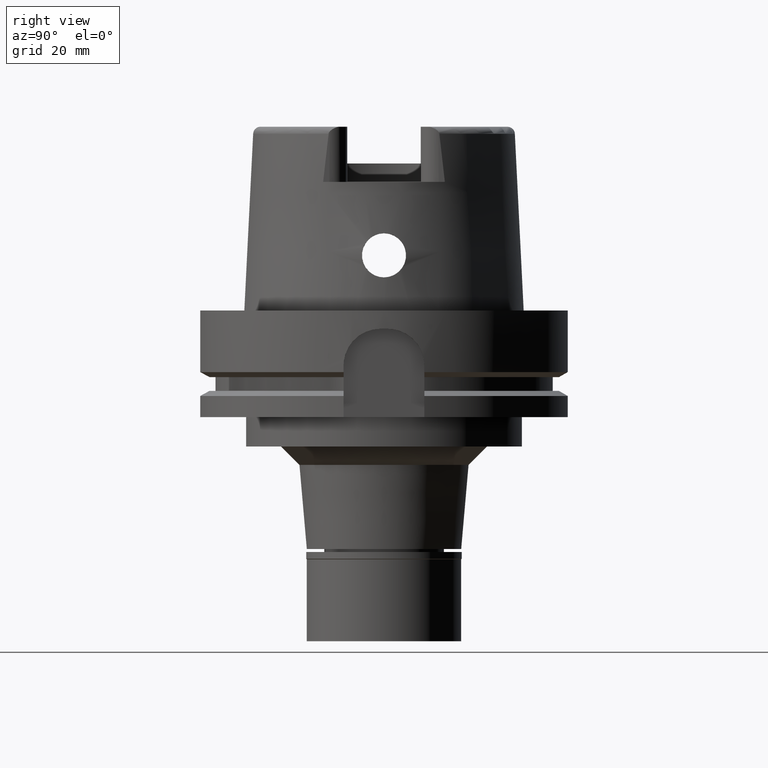
[diagram: clean part render]
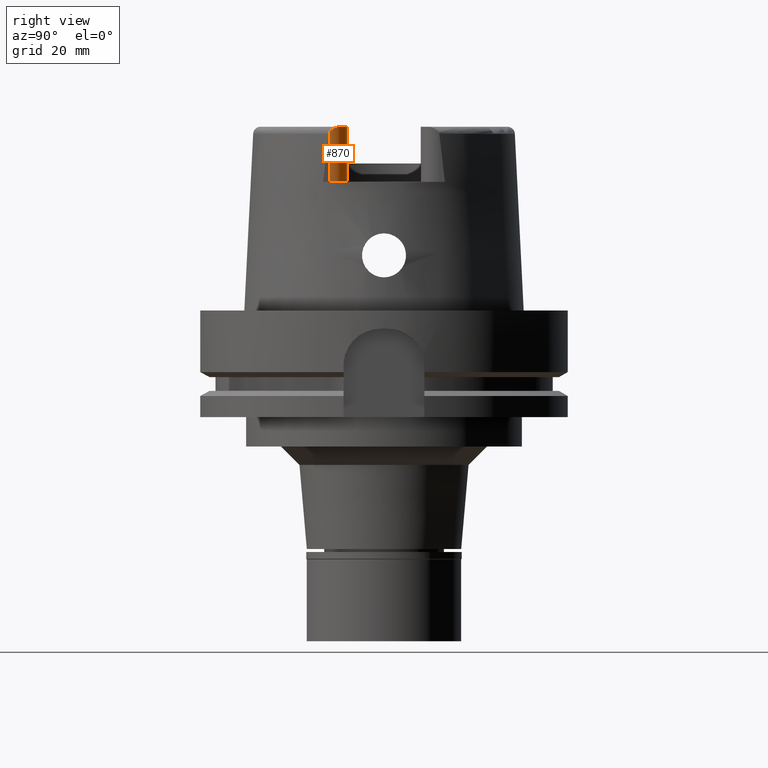
[diagram: same view with one face highlighted and labeled with its STEP entity id]
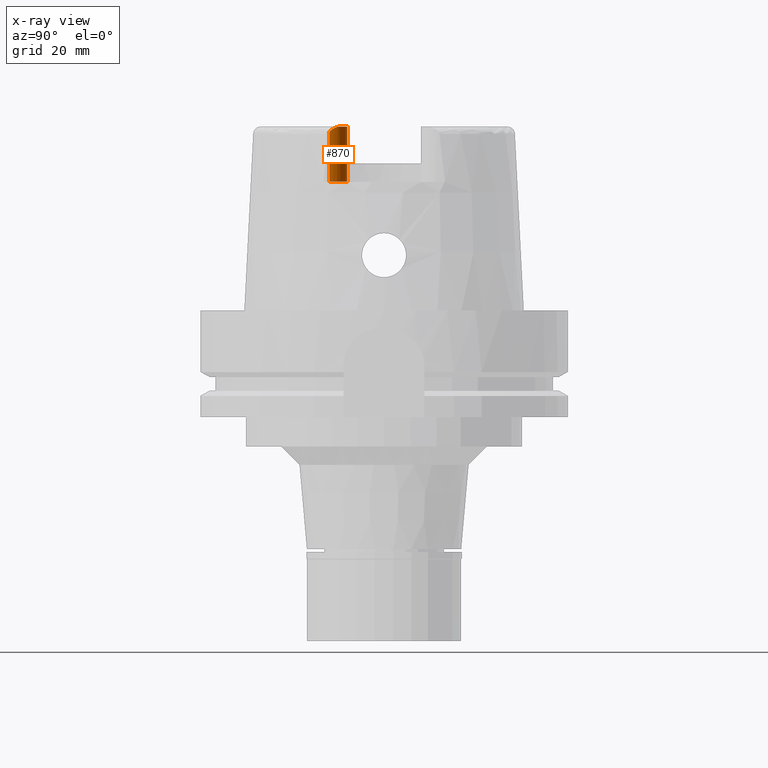
[diagram: x-ray of the same camera — body ghosted, the highlighted face saturated]
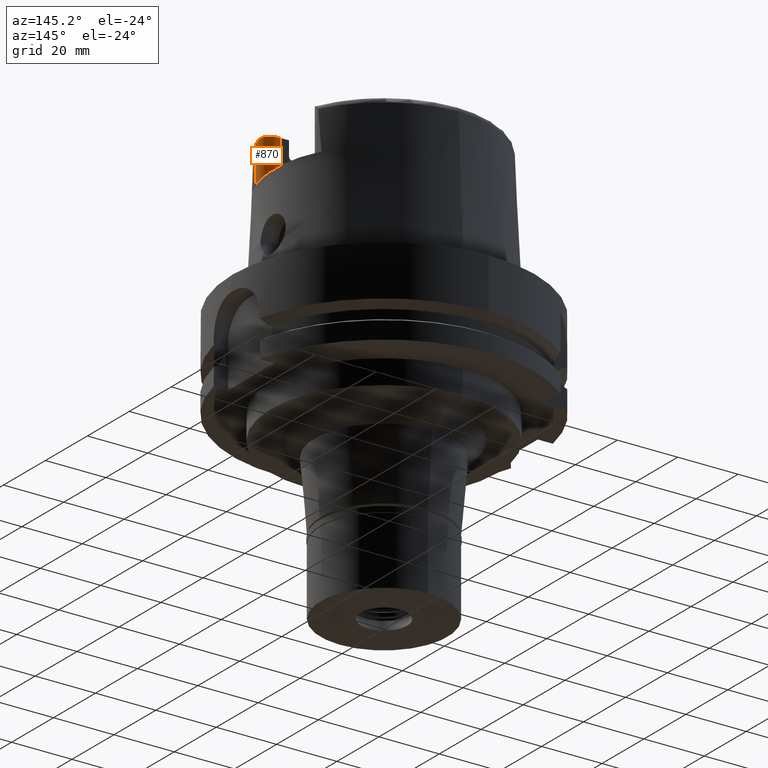
[diagram: same view with one face highlighted and labeled with its STEP entity id]
A machine part, right view. The second image highlights one B-rep face of the part: STEP entity #870.
The next image is the same camera in x-ray: the body ghosted, the highlighted face saturated — about 0% of this face is hidden behind the body in this view.
A second angle (auxiliary view) of the same face is appended — the face is thin or edge-on in the first view.
In plain terms, the highlighted cylindrical surface (edge-blend (fillet) strip) has radius 4.88 mm, axis along (0, 0, 1).
Its self-contained STEP definition (entity closure, byte-faithful):
#108 = CARTESIAN_POINT ( 'NONE',  ( 27.36999999999999744, -10.00999999999999979, 50.00000000000000000 ) ) ;
#114 = CARTESIAN_POINT ( 'NONE',  ( 32.24539014934870806, -14.67088132864322425, 48.81136958945310766 ) ) ;
#146 = CARTESIAN_POINT ( 'NONE',  ( 31.99031978055696257, -13.31935786708663016, 49.69916104492553899 ) ) ;
#251 = CARTESIAN_POINT ( 'NONE',  ( 32.25000000000000000, -14.89000000000000057, 48.54599893821999501 ) ) ;
#260 = CARTESIAN_POINT ( 'NONE',  ( 32.12663530125747258, -13.79944589894771845, 49.45955517801299095 ) ) ;
#406 = VECTOR ( 'NONE', #3577, 1000.000000000000000 ) ;
#456 = VERTEX_POINT ( 'NONE', #4684 ) ;
#512 = CARTESIAN_POINT ( 'NONE',  ( 32.22126971678873986, -14.35849003846552385, 49.08889585879032325 ) ) ;
#543 = CARTESIAN_POINT ( 'NONE',  ( 32.19213688604170187, -14.14072726020609316, 49.24714570852628270 ) ) ;
#567 = CARTESIAN_POINT ( 'NONE',  ( 31.96070376589645079, -13.23241360588359683, 49.73677206916443794 ) ) ;
#598 = CARTESIAN_POINT ( 'NONE',  ( 32.00496693208037868, -13.36306757569388992, 49.68001514878047686 ) ) ;
#654 = CARTESIAN_POINT ( 'NONE',  ( 31.82295007811054788, -12.89351970637594214, 49.85880025752524602 ) ) ;
#737 = CARTESIAN_POINT ( 'NONE',  ( 32.25000000000000000, -14.89000000000000057, 35.00000000000000000 ) ) ;
#868 = VECTOR ( 'NONE', #5505, 1000.000000000000000 ) ;
#870 = ADVANCED_FACE ( 'NONE', ( #4155 ), #1129, .T. ) ;
#884 = CARTESIAN_POINT ( 'NONE',  ( 32.21194969140781694, -14.28105033875304386, 49.14739473866944763 ) ) ;
#937 = CARTESIAN_POINT ( 'NONE',  ( 32.23215309147033025, -14.47290528106199403, 48.99500468590253632 ) ) ;
#1080 = CARTESIAN_POINT ( 'NONE',  ( 31.99694964758934645, -13.33899037138733235, 49.69061280187604268 ) ) ;
#1127 = CARTESIAN_POINT ( 'NONE',  ( 32.15212017854838678, -13.91639293560282375, 49.39123559061100366 ) ) ;
#1129 = CYLINDRICAL_SURFACE ( 'NONE', #5630, 4.880000000000002558 ) ;
#1238 = ORIENTED_EDGE ( 'NONE', *, *, #2032, .F. ) ;
#1360 = VERTEX_POINT ( 'NONE', #4207 ) ;
#1413 = CARTESIAN_POINT ( 'NONE',  ( 32.17702710442755887, -14.04630384888730354, 49.31050743832147276 ) ) ;
#1524 = CARTESIAN_POINT ( 'NONE',  ( 31.35385269249000473, -12.07161079256999869, 50.00000000000000000 ) ) ;
#1542 = DIRECTION ( 'NONE',  ( 1.000000000000000000, 0.0000000000000000000, 0.0000000000000000000 ) ) ;
#1615 = CARTESIAN_POINT ( 'NONE',  ( 27.36999999999999744, -10.00999999999999979, 50.00000000000000000 ) ) ;
#1792 = EDGE_CURVE ( 'NONE', #4552, #456, #5277, .T. ) ;
#1806 = CARTESIAN_POINT ( 'NONE',  ( 32.24950222271697697, -14.78102605111360468, 48.69318938877054137 ) ) ;
#1828 = CARTESIAN_POINT ( 'NONE',  ( 32.22608685640454240, -14.40557171884605125, 49.05138756362227781 ) ) ;
#1859 = CARTESIAN_POINT ( 'NONE',  ( 31.51374010624900635, -12.29761503006756662, 49.99999999999935341 ) ) ;
#1893 = DIRECTION ( 'NONE',  ( 1.000000000000000000, 0.0000000000000000000, 0.0000000000000000000 ) ) ;
#1915 = CARTESIAN_POINT ( 'NONE',  ( 32.14010158808297746, -13.85981532597867449, 49.42472743063108709 ) ) ;
#1947 = CARTESIAN_POINT ( 'NONE',  ( 32.01220829263090906, -13.38532569285412066, 49.67003576452920299 ) ) ;
#2017 = ORIENTED_EDGE ( 'NONE', *, *, #3501, .T. ) ;
#2032 = EDGE_CURVE ( 'NONE', #4552, #3288, #4380, .T. ) ;
#2178 = CARTESIAN_POINT ( 'NONE',  ( 32.23045216909376620, -14.45359217681013853, 49.01131389383411374 ) ) ;
#2237 = CARTESIAN_POINT ( 'NONE',  ( 32.19964303585997811, -14.19043640758718361, 49.21279182384446926 ) ) ;
#2287 = CARTESIAN_POINT ( 'NONE',  ( 31.86189391295950912, -12.98220724004971771, 49.83007299269544177 ) ) ;
#2298 = CARTESIAN_POINT ( 'NONE',  ( 27.36999999999999744, -14.89000000000000057, 50.00000000000000000 ) ) ;
#2316 = CARTESIAN_POINT ( 'NONE',  ( 31.83854518599578398, -12.92869603165677184, 49.84756870873616208 ) ) ;
#2392 = DIRECTION ( 'NONE',  ( 0.0000000000000000000, 0.0000000000000000000, 1.000000000000000000 ) ) ;
#2599 = CARTESIAN_POINT ( 'NONE',  ( 32.19292317960250216, -14.14579940520703971, 49.24368013494063945 ) ) ;
#2823 = CARTESIAN_POINT ( 'NONE',  ( 32.03764327268894618, -13.46595378907461260, 49.63296098888038443 ) ) ;
#2856 = CARTESIAN_POINT ( 'NONE',  ( 32.07034954397470017, -13.57627044950013229, 49.57967430344268678 ) ) ;
#3098 = CARTESIAN_POINT ( 'NONE',  ( 32.24345624141633238, -14.63095801370765159, 48.85152033807264615 ) ) ;
#3123 = CARTESIAN_POINT ( 'NONE',  ( 32.19408002140509950, -14.15333309673237849, 49.23851124320943029 ) ) ;
#3149 = CARTESIAN_POINT ( 'NONE',  ( 32.23703229289170480, -14.53252547444221854, 48.94331525459676868 ) ) ;
#3211 = DIRECTION ( 'NONE',  ( 0.0000000000000000000, 0.0000000000000000000, 1.000000000000000000 ) ) ;
#3266 = CARTESIAN_POINT ( 'NONE',  ( 32.02712239200273103, -13.43198634472817510, 49.64880643188232057 ) ) ;
#3288 = VERTEX_POINT ( 'NONE', #251 ) ;
#3291 = CARTESIAN_POINT ( 'NONE',  ( 32.09373643162513901, -13.66105915030842688, 49.53649309024301317 ) ) ;
#3373 = EDGE_LOOP ( 'NONE', ( #3759, #1238, #5443, #4613, #2017 ) ) ;
#3501 = EDGE_CURVE ( 'NONE', #5198, #1360, #5410, .T. ) ;
#3537 = CARTESIAN_POINT ( 'NONE',  ( 32.25000000000098055, -14.84161960300253114, 48.61746385756801203 ) ) ;
#3561 = CARTESIAN_POINT ( 'NONE',  ( 32.20676535527764628, -14.24062629129427826, 49.17720089371777448 ) ) ;
#3577 = DIRECTION ( 'NONE',  ( -2.098162679624000168E-14, 0.0000000000000000000, 1.000000000000000000 ) ) ;
#3588 = CARTESIAN_POINT ( 'NONE',  ( 32.18546761264121869, -14.09794960188761337, 49.27630078774524947 ) ) ;
#3589 = AXIS2_PLACEMENT_3D ( 'NONE', #2298, #4054, #3661 ) ;
#3617 = CARTESIAN_POINT ( 'NONE',  ( 31.99012933758247357, -13.31879581607089413, 49.69940513167280471 ) ) ;
#3661 = DIRECTION ( 'NONE',  ( 0.0000000000000000000, 1.000000000000000000, 0.0000000000000000000 ) ) ;
#3674 = CARTESIAN_POINT ( 'NONE',  ( 32.12219717235213778, -13.78022860992796517, 49.47042719236368669 ) ) ;
#3759 = ORIENTED_EDGE ( 'NONE', *, *, #4262, .F. ) ;
#3909 = CARTESIAN_POINT ( 'NONE',  ( 32.23371126092610695, -14.49111851104863646, 48.97946101895784921 ) ) ;
#3911 = EDGE_CURVE ( 'NONE', #5198, #456, #5537, .T. ) ;
#3932 = CARTESIAN_POINT ( 'NONE',  ( 32.25000000000000000, -14.89000000000000057, 48.54599893821999501 ) ) ;
#4054 = DIRECTION ( 'NONE',  ( 0.0000000000000000000, 0.0000000000000000000, -1.000000000000000000 ) ) ;
#4155 = FACE_OUTER_BOUND ( 'NONE', #3373, .T. ) ;
#4207 = CARTESIAN_POINT ( 'NONE',  ( 31.35385269249000473, -12.07161079256999869, 50.00000000000000000 ) ) ;
#4262 = EDGE_CURVE ( 'NONE', #3288, #1360, #4564, .T. ) ;
#4363 = CARTESIAN_POINT ( 'NONE',  ( 32.15902089487375548, -13.95109019740912970, 49.37003432720170792 ) ) ;
#4380 = LINE ( 'NONE', #5239, #406 ) ;
#4552 = VERTEX_POINT ( 'NONE', #737 ) ;
#4564 = B_SPLINE_CURVE_WITH_KNOTS ( 'NONE', 3,
 ( #3932, #3537, #1806, #114, #3098, #4850, #3149, #3909, #937, #5219, #2178, #1828, #512, #884, #3561, #2237, #5308, #3123, #2599, #543, #3588, #1413, #4363, #1127, #1915, #4927, #260, #3674, #3291, #2856, #2823, #3266, #1947, #598, #1080, #5037, #4985, #146, #3617, #567, #5446, #5471, #2287, #2316, #654, #5415, #4955, #1859, #1524 ),
 .UNSPECIFIED., .F., .F.,
 ( 4, 2, 2, 1, 1, 2, 2, 2, 1, 1, 1, 2, 2, 2, 2, 2, 2, 2, 2, 1, 1, 1, 2, 2, 2, 1, 2, 2, 4 ),
 ( 0.0000000000000000000, 0.1250000000000454636, 0.1875000000000712486, 0.2187500000000871525, 0.2343750000000927591, 0.2421875000000949518, 0.2500000000000970890, 0.3125000000001401101, 0.3437500000001635359, 0.3593750000001738609, 0.3671875000001789680, 0.3710937500001798561, 0.3750000000001807998, 0.4375000000001249001, 0.4687500000000965339, 0.4843750000000835998, 0.5000000000000706102, 0.5625000000000150990, 0.5937499999999877875, 0.6093749999999747979, 0.6171874999999691358, 0.6210937499999654721, 0.6230468749999639178, 0.6249999999999623634, 0.6874999999999694689, 0.7187499999999722444, 0.7343749999999733546, 0.7499999999999744649, 1.000000000000000000 ),
 .UNSPECIFIED. ) ;
#4613 = ORIENTED_EDGE ( 'NONE', *, *, #3911, .F. ) ;
#4618 = CARTESIAN_POINT ( 'NONE',  ( 27.36999999999999744, -14.89000000000000057, 50.00000000000000000 ) ) ;
#4684 = CARTESIAN_POINT ( 'NONE',  ( 27.36999999999999744, -10.00999999999999979, 35.00000000000000000 ) ) ;
#4850 = CARTESIAN_POINT ( 'NONE',  ( 32.23937103655952541, -14.56615575087177739, 48.91257880966385585 ) ) ;
#4927 = CARTESIAN_POINT ( 'NONE',  ( 32.13581714528140054, -13.84020081607567221, 49.43617222556120794 ) ) ;
#4955 = CARTESIAN_POINT ( 'NONE',  ( 31.67130564510941326, -12.56182781469827781, 49.95971514382258505 ) ) ;
#4985 = CARTESIAN_POINT ( 'NONE',  ( 31.99141036552324735, -13.32257151626597391, 49.69776697339774074 ) ) ;
#5037 = CARTESIAN_POINT ( 'NONE',  ( 31.99305466791033936, -13.32742593711675028, 49.69565816837842931 ) ) ;
#5090 = AXIS2_PLACEMENT_3D ( 'NONE', #5467, #2392, #1542 ) ;
#5198 = VERTEX_POINT ( 'NONE', #108 ) ;
#5219 = CARTESIAN_POINT ( 'NONE',  ( 32.23108346580917072, -14.46065904333550556, 49.00537783074231157 ) ) ;
#5239 = CARTESIAN_POINT ( 'NONE',  ( 32.25000000000000000, -14.89000000000000057, 35.00000000000000000 ) ) ;
#5277 = CIRCLE ( 'NONE', #5090, 4.880000000000002558 ) ;
#5308 = CARTESIAN_POINT ( 'NONE',  ( 32.19579363955895701, -14.16457887881248290, 49.23076972931308859 ) ) ;
#5410 = CIRCLE ( 'NONE', #3589, 4.879999999999999005 ) ;
#5415 = CARTESIAN_POINT ( 'NONE',  ( 31.81582007510687404, -12.87767127550162094, 49.86374691445152507 ) ) ;
#5443 = ORIENTED_EDGE ( 'NONE', *, *, #1792, .T. ) ;
#5446 = CARTESIAN_POINT ( 'NONE',  ( 31.93082765345238272, -13.15230209820496832, 49.76861009228403532 ) ) ;
#5467 = CARTESIAN_POINT ( 'NONE',  ( 27.36999999999999744, -14.89000000000000057, 35.00000000000000000 ) ) ;
#5471 = CARTESIAN_POINT ( 'NONE',  ( 31.88503680844614863, -13.03793925591565639, 49.81055347801179778 ) ) ;
#5505 = DIRECTION ( 'NONE',  ( 0.0000000000000000000, 0.0000000000000000000, -1.000000000000000000 ) ) ;
#5537 = LINE ( 'NONE', #1615, #868 ) ;
#5630 = AXIS2_PLACEMENT_3D ( 'NONE', #4618, #3211, #1893 ) ;